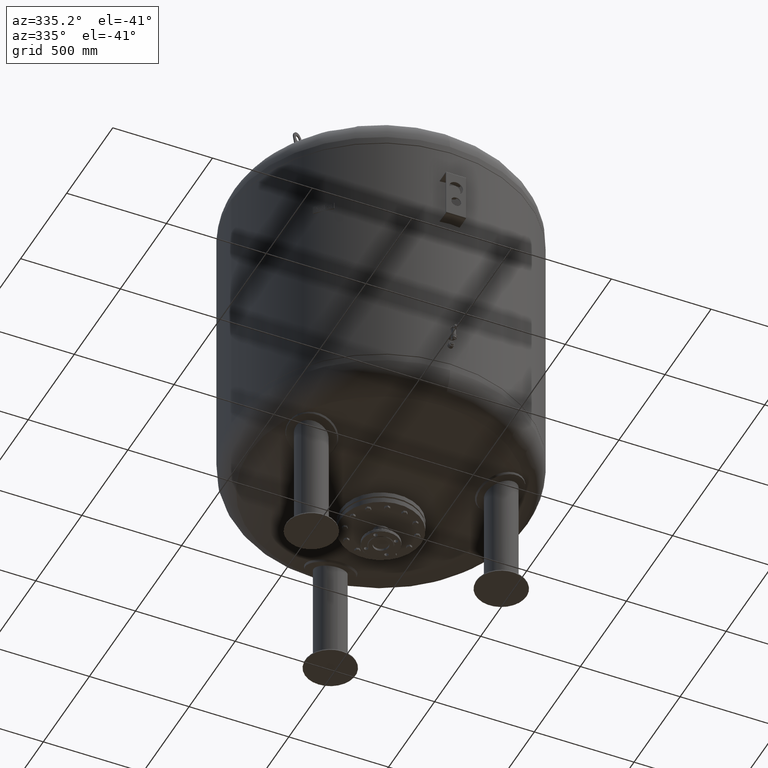
[diagram: clean part render]
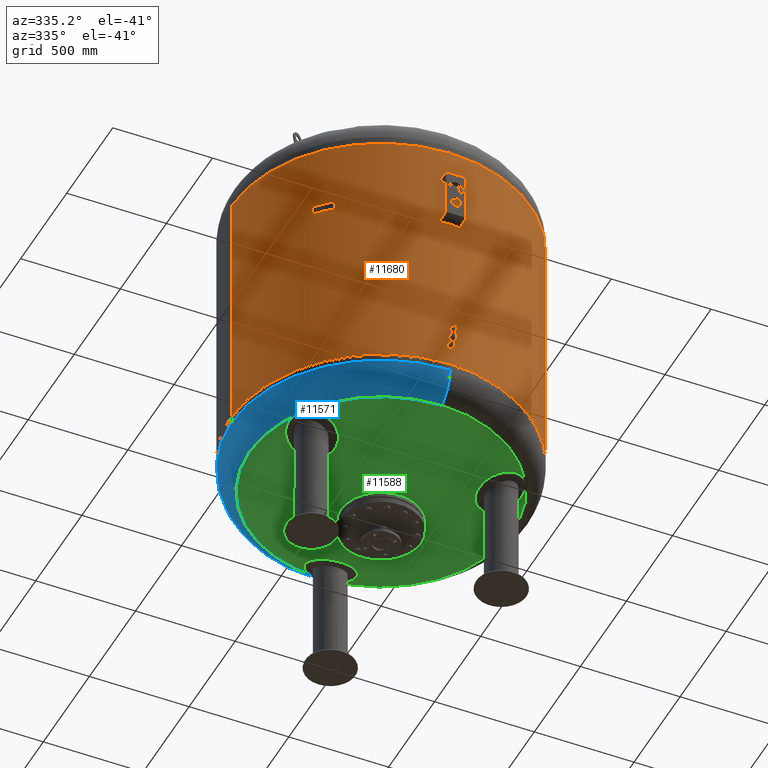
[diagram: same view with three faces highlighted in distinct colors, each labeled with its STEP entity id]
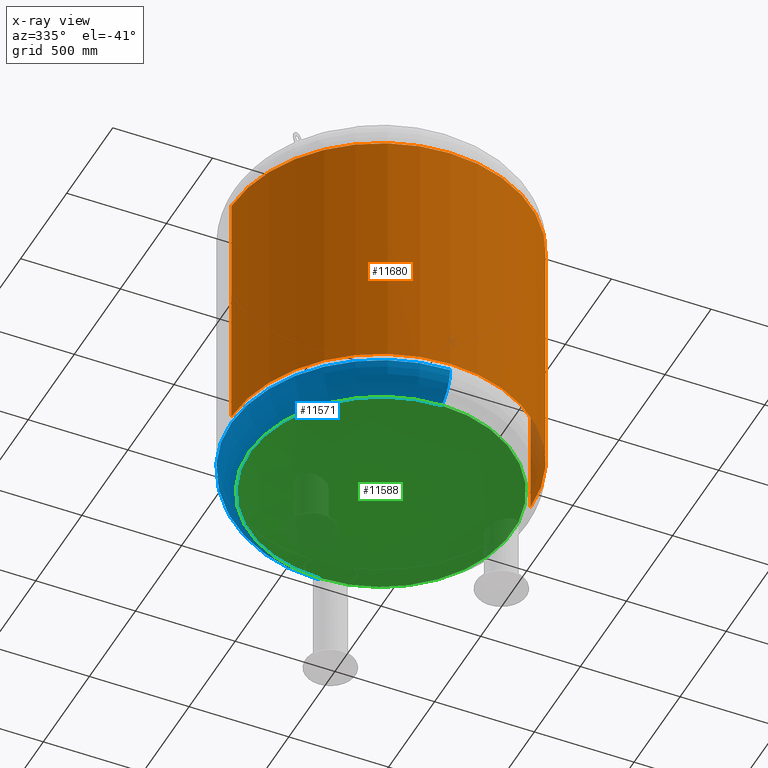
[diagram: x-ray of the same camera — body ghosted, the three highlighted faces saturated]
A machine part, auxiliary view with three faces highlighted in distinct colors.
The next image is the same camera in x-ray (body ghosted, the three faces saturated) — at least one of them is partly hidden behind the body in this view.
Their STEP definitions:

[orange] entity #11680 — the highlighted cylindrical surface (partial cylindrical patch) has radius 750 mm, axis along (0, 0, 1).
#11639=CARTESIAN_POINT('',(9.041626E-015,0.0,1782.0));
#11640=DIRECTION('',(2.670074E-017,0.0,1.0));
#11641=DIRECTION('',(1.0,0.0,0.0));
#11642=AXIS2_PLACEMENT_3D('',#11639,#11640,#11641);
#11643=CYLINDRICAL_SURFACE('',#11642,750.000000000000450);
#11644=CARTESIAN_POINT('',(750.000000000000570,0.0,2093.0));
#11645=VERTEX_POINT('',#11644);
#11646=CARTESIAN_POINT('',(749.999999999999890,0.0,822.999999999999770));
#11647=VERTEX_POINT('',#11646);
#11648=CARTESIAN_POINT('',(750.000000000000570,0.0,2093.0));
#11649=DIRECTION('',(0.0,0.0,-1.0));
#11650=VECTOR('',#11649,1270.000000000000200);
#11651=LINE('',#11648,#11650);
#11652=EDGE_CURVE('',#11645,#11647,#11651,.T.);
#11653=ORIENTED_EDGE('',*,*,#11652,.F.);
#11654=CARTESIAN_POINT('',(-750.000000000000450,-9.184548E-014,2093.0));
#11655=VERTEX_POINT('',#11654);
#11656=CARTESIAN_POINT('',(1.598721E-014,0.0,2093.0));
#11657=DIRECTION('',(0.0,0.0,1.0));
#11658=DIRECTION('',(1.0,0.0,0.0));
#11659=AXIS2_PLACEMENT_3D('',#11656,#11657,#11658);
#11660=CIRCLE('',#11659,750.000000000000570);
#11661=EDGE_CURVE('',#11655,#11645,#11660,.T.);
#11662=ORIENTED_EDGE('',*,*,#11661,.F.);
#11663=CARTESIAN_POINT('',(-749.999999999999890,-9.184548E-014,822.999999999999770));
#11664=VERTEX_POINT('',#11663);
#11665=CARTESIAN_POINT('',(-750.000000000000450,-9.184548E-014,2093.0));
#11666=DIRECTION('',(0.0,0.0,-1.0));
#11667=VECTOR('',#11666,1270.000000000000200);
#11668=LINE('',#11665,#11667);
#11669=EDGE_CURVE('',#11655,#11664,#11668,.T.);
#11670=ORIENTED_EDGE('',*,*,#11669,.T.);
#11671=CARTESIAN_POINT('',(-1.660786E-014,0.0,822.999999999999770));
#11672=DIRECTION('',(0.0,0.0,1.0));
#11673=DIRECTION('',(1.0,0.0,0.0));
#11674=AXIS2_PLACEMENT_3D('',#11671,#11672,#11673);
#11675=CIRCLE('',#11674,749.999999999999890);
#11676=EDGE_CURVE('',#11664,#11647,#11675,.T.);
#11677=ORIENTED_EDGE('',*,*,#11676,.T.);
#11678=EDGE_LOOP('',(#11653,#11662,#11670,#11677));
#11679=FACE_OUTER_BOUND('',#11678,.T.);
#11680=ADVANCED_FACE('',(#11679),#11643,.T.);

[blue] entity #11571 — the highlighted toroidal blend (fillet) surface has major radius 591 mm and minor (blend) radius 159 mm.
#11476=CARTESIAN_POINT('',(-750.0,-5.423428E-014,785.237667415897930));
#11477=VERTEX_POINT('',#11476);
#11501=CARTESIAN_POINT('',(-1.628998E-013,750.0,785.237667415898270));
#11502=VERTEX_POINT('',#11501);
#11510=CARTESIAN_POINT('',(-5.075605E-014,-5.423428E-014,785.237667415898160));
#11511=DIRECTION('',(0.0,0.0,1.0));
#11512=DIRECTION('',(-1.0,0.0,0.0));
#11513=AXIS2_PLACEMENT_3D('',#11510,#11511,#11512);
#11514=CIRCLE('',#11513,750.0);
#11515=EDGE_CURVE('',#11502,#11477,#11514,.T.);
#11520=CARTESIAN_POINT('',(-7.105427E-014,-5.423428E-014,785.237667415898160));
#11521=DIRECTION('',(-1.719159E-016,-1.836970E-016,1.0));
#11522=DIRECTION('',(0.0,-1.0,0.0));
#11523=AXIS2_PLACEMENT_3D('',#11520,#11521,#11522);
#11524=TOROIDAL_SURFACE('',#11523,591.0,159.0);
#11525=CARTESIAN_POINT('',(-7.105427E-014,-750.0,785.237667415898040));
#11526=VERTEX_POINT('',#11525);
#11527=CARTESIAN_POINT('',(-4.647817E-014,-660.606666666666800,642.283437133770350));
#11528=VERTEX_POINT('',#11527);
#11529=CARTESIAN_POINT('',(-7.105427E-014,-591.0,785.237667415898040));
#11530=DIRECTION('',(1.0,0.0,0.0));
#11531=DIRECTION('',(0.0,-1.0,0.0));
#11532=AXIS2_PLACEMENT_3D('',#11529,#11530,#11531);
#11533=CIRCLE('',#11532,159.0);
#11534=EDGE_CURVE('',#11526,#11528,#11533,.T.);
#11535=ORIENTED_EDGE('',*,*,#11534,.F.);
#11536=CARTESIAN_POINT('',(-5.075605E-014,-5.423428E-014,785.237667415898160));
#11537=DIRECTION('',(0.0,0.0,1.0));
#11538=DIRECTION('',(-1.0,0.0,0.0));
#11539=AXIS2_PLACEMENT_3D('',#11536,#11537,#11538);
#11540=CIRCLE('',#11539,750.0);
#11541=EDGE_CURVE('',#11477,#11526,#11540,.T.);
#11542=ORIENTED_EDGE('',*,*,#11541,.F.);
#11543=ORIENTED_EDGE('',*,*,#11515,.F.);
#11544=CARTESIAN_POINT('',(-1.273765E-013,660.606666666666800,642.283437133770800));
#11545=VERTEX_POINT('',#11544);
#11546=CARTESIAN_POINT('',(-1.434285E-013,591.0,785.237667415898270));
#11547=DIRECTION('',(-1.0,0.0,0.0));
#11548=DIRECTION('',(0.0,1.0,0.0));
#11549=AXIS2_PLACEMENT_3D('',#11546,#11547,#11548);
#11550=CIRCLE('',#11549,159.0);
#11551=EDGE_CURVE('',#11502,#11545,#11550,.T.);
#11552=ORIENTED_EDGE('',*,*,#11551,.T.);
#11553=CARTESIAN_POINT('',(-660.606666666666800,-2.797401E-014,642.283437133770460));
#11554=VERTEX_POINT('',#11553);
#11555=CARTESIAN_POINT('',(-2.617994E-014,-2.797401E-014,642.283437133770580));
#11556=DIRECTION('',(0.0,0.0,1.0));
#11557=DIRECTION('',(-1.0,0.0,0.0));
#11558=AXIS2_PLACEMENT_3D('',#11555,#11556,#11557);
#11559=CIRCLE('',#11558,660.606666666666800);
#11560=EDGE_CURVE('',#11545,#11554,#11559,.T.);
#11561=ORIENTED_EDGE('',*,*,#11560,.T.);
#11562=CARTESIAN_POINT('',(-2.617994E-014,-2.797401E-014,642.283437133770580));
#11563=DIRECTION('',(0.0,0.0,1.0));
#11564=DIRECTION('',(-1.0,0.0,0.0));
#11565=AXIS2_PLACEMENT_3D('',#11562,#11563,#11564);
#11566=CIRCLE('',#11565,660.606666666666800);
#11567=EDGE_CURVE('',#11554,#11528,#11566,.T.);
#11568=ORIENTED_EDGE('',*,*,#11567,.T.);
#11569=EDGE_LOOP('',(#11535,#11542,#11543,#11552,#11561,#11568));
#11570=FACE_OUTER_BOUND('',#11569,.T.);
#11571=ADVANCED_FACE('',(#11570),#11524,.T.);

[green] entity #11588 — the highlighted spherical surface has radius 1509 mm.
#11527=CARTESIAN_POINT('',(-4.647817E-014,-660.606666666666800,642.283437133770350));
#11528=VERTEX_POINT('',#11527);
#11544=CARTESIAN_POINT('',(-1.273765E-013,660.606666666666800,642.283437133770800));
#11545=VERTEX_POINT('',#11544);
#11553=CARTESIAN_POINT('',(-660.606666666666800,-2.797401E-014,642.283437133770460));
#11554=VERTEX_POINT('',#11553);
#11555=CARTESIAN_POINT('',(-2.617994E-014,-2.797401E-014,642.283437133770580));
#11556=DIRECTION('',(0.0,0.0,1.0));
#11557=DIRECTION('',(-1.0,0.0,0.0));
#11558=AXIS2_PLACEMENT_3D('',#11555,#11556,#11557);
#11559=CIRCLE('',#11558,660.606666666666800);
#11560=EDGE_CURVE('',#11545,#11554,#11559,.T.);
#11562=CARTESIAN_POINT('',(-2.617994E-014,-2.797401E-014,642.283437133770580));
#11563=DIRECTION('',(0.0,0.0,1.0));
#11564=DIRECTION('',(-1.0,0.0,0.0));
#11565=AXIS2_PLACEMENT_3D('',#11562,#11563,#11564);
#11566=CIRCLE('',#11565,660.606666666666800);
#11567=EDGE_CURVE('',#11554,#11528,#11566,.T.);
#11572=CARTESIAN_POINT('',(-3.455040E-013,-2.771988E-013,1999.0));
#11573=DIRECTION('',(0.0,-1.0,0.0));
#11574=DIRECTION('',(1.0,0.0,0.0));
#11575=AXIS2_PLACEMENT_3D('',#11572,#11573,#11574);
#11576=SPHERICAL_SURFACE('',#11575,1509.0);
#11577=ORIENTED_EDGE('',*,*,#11567,.F.);
#11578=ORIENTED_EDGE('',*,*,#11560,.F.);
#11579=CARTESIAN_POINT('',(-2.617994E-014,-2.797401E-014,642.283437133770580));
#11580=DIRECTION('',(0.0,0.0,1.0));
#11581=DIRECTION('',(-1.0,0.0,0.0));
#11582=AXIS2_PLACEMENT_3D('',#11579,#11580,#11581);
#11583=CIRCLE('',#11582,660.606666666666800);
#11584=EDGE_CURVE('',#11528,#11545,#11583,.T.);
#11585=ORIENTED_EDGE('',*,*,#11584,.F.);
#11586=EDGE_LOOP('',(#11577,#11578,#11585));
#11587=FACE_OUTER_BOUND('',#11586,.T.);
#11588=ADVANCED_FACE('',(#11587),#11576,.T.);